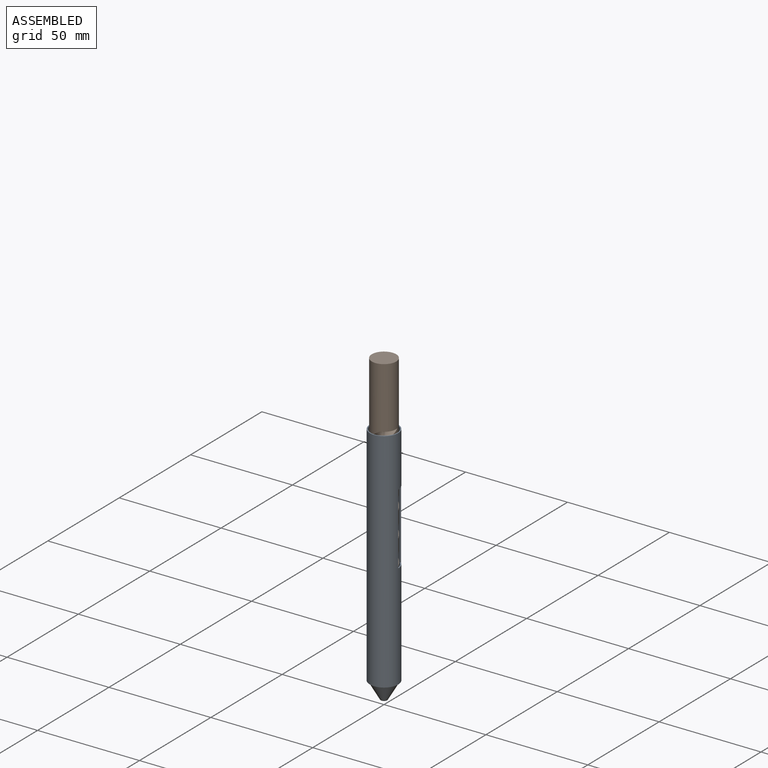
[diagram: assembled view]
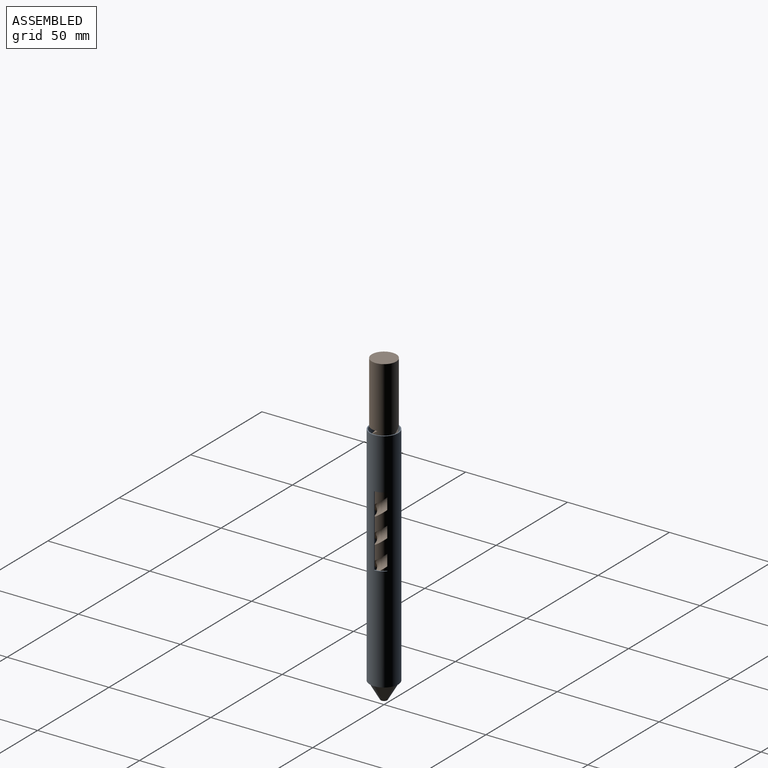
[diagram: assembled view, second angle]
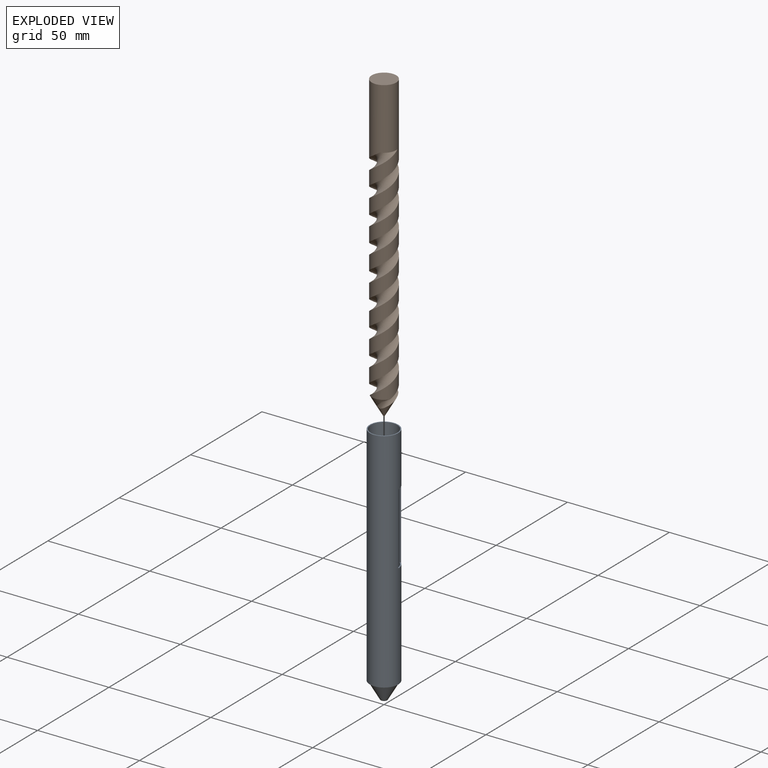
[diagram: exploded view]
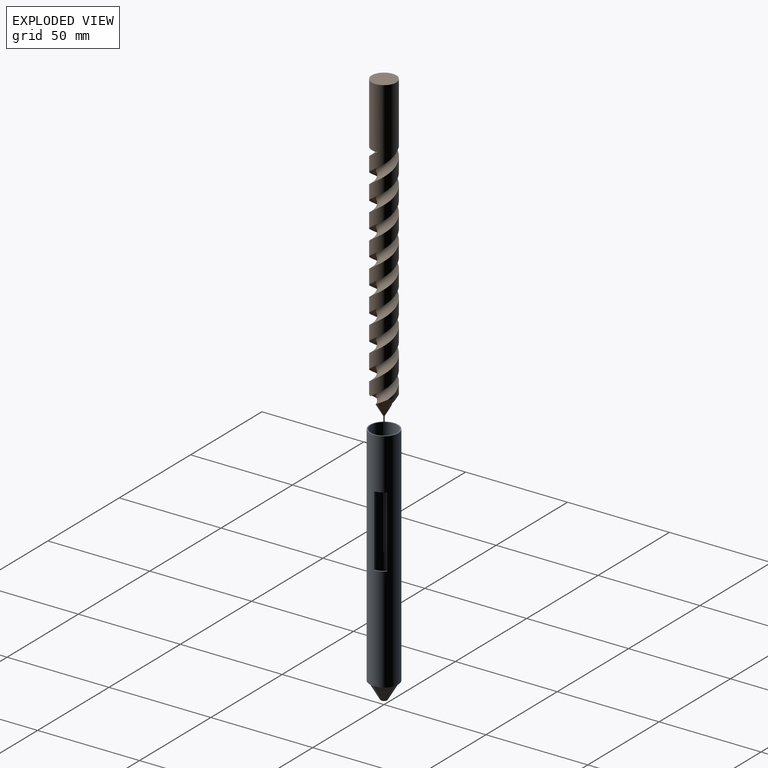
[diagram: exploded view, second angle]
FCSTD DOCUMENT  (FreeCAD 1.0R39109 (Git))
Label: assembly
License: All rights reserved
LicenseURL: https://en.wikipedia.org/wiki/All_rights_reserved
objects: App::DocumentObjectGroup×2, App::Link×2, App::FeaturePython×1, Assembly::JointGroup×1, Assembly::AssemblyObject×1
EXTERNAL_REF file=rurka.FCStd obj=Body
EXTERNAL_REF file=sruba.FCStd obj=Body002

FEATURE [App::DocumentObjectGroup] Group  label="Grupa"
FEATURE [App::DocumentObjectGroup] Group001  label="Grupa001"
FEATURE [App::Link] Zawarto____  label="Zawartość"
  LinkedObject = -> <external rurka.FCStd>#Body
FEATURE [App::FeaturePython] GroundedJoint  # Assembly grounded joint (typed FeaturePython)
  ObjectToGround = -> Zawarto____
FEATURE [Assembly::JointGroup] Joints
  Group = -> [GroundedJoint]
FEATURE [App::Link] Zawarto____002  label="Zawartość002"
  LinkPlacement = pos=(0,0,1.49) rot=(0,0,1;0rad)
  LinkedObject = -> <external sruba.FCStd>#Body002
  Placement = pos=(0,0,1.49) rot=(0,0,1;0rad)
FEATURE [Assembly::AssemblyObject] Assembly
  Group = -> [Joints,Zawarto____,GroundedJoint,Zawarto____002]
  Origin = -> Origin
  Type = Assembly

RESOLVED EXTERNAL PARTS (link-assembly join: the EXTERNAL_REF files above that resolve inside this repo's crawl, each included once):
---- part rurka.FCStd = doc fcstd_3a7cbbab8489 ----
FCSTD DOCUMENT  (FreeCAD 1.0R39109 (Git))
Label: rurka
License: All rights reserved
LicenseURL: https://en.wikipedia.org/wiki/All_rights_reserved
objects: Sketcher::SketchObject×4, PartDesign::Pocket×2, PartDesign::Pad×1, PartDesign::Revolution×1, PartDesign::Body×1
note: 21 computed .brp shape members not serialized (recipe doc carries the construction recipe); baked Part::Feature solids carry a one-line shape summary decoded from their .brp

FEATURE [Sketcher::SketchObject] Sketch
  ArcFitTolerance = 1e-06
  AttachmentSupport = -> [XY_Plane]
  FullyConstrained = true
  MakeInternals = false
  MapMode = 5
  sketch-geometry (2):
    g0: Circle CenterX=0 CenterY=0 CenterZ=0 NormalX=0 NormalY=0 NormalZ=1 AngleXU=0 Radius=6.5
    g1: Circle CenterX=0 CenterY=0 CenterZ=0 NormalX=0 NormalY=0 NormalZ=1 AngleXU=0 Radius=7
  constraints (4):
    c: Coincident(g0,g-1)
    c: Coincident(g1,g0)
    c: Radius(g0) = 6.5
    c: Radius(g1) = 7
FEATURE [PartDesign::Pad] Pad
  Direction = (0,0,1)
  Length = 120
  Length2 = 10
  Profile = -> Sketch
  ReferenceAxis = -> Sketch [N_Axis]
  Refine = true
  Suppressed = false
  Type = 0
FEATURE [Sketcher::SketchObject] Sketch001
  ArcFitTolerance = 1e-06
  AttachmentSupport = -> [XZ_Plane]
  FullyConstrained = true
  MakeInternals = false
  MapMode = 5
  Placement = pos=(0,0,0) rot=(1,0,0;1.5708rad)
  sketch-geometry (4):
    g0: LineSegment StartX=0.917134 StartY=0 StartZ=0 EndX=7 EndY=10.5358 EndZ=0
    g1: LineSegment StartX=7 StartY=10.5358 StartZ=0 EndX=7 EndY=9.41 EndZ=0
    g2: LineSegment StartX=7 StartY=9.41 StartZ=0 EndX=1.56713 EndY=0 EndZ=0
    g3: LineSegment StartX=1.56713 StartY=0 StartZ=0 EndX=0.917134 EndY=0 EndZ=0
  constraints (12):
    c: PointOnObject(g0,g-1)
    c: Coincident(g0,g1)
    c: Vertical(g1)
    c: Coincident(g1,g2)
    c: PointOnObject(g2,g-1)
    c: Coincident(g2,g3)
    c: Coincident(g3,g0)
    c: Parallel(g0,g2)
    c: DistanceX(g3,g3) = 0.65
    c: Angle(g3,g0) = 1.0472
    c: DistanceX(g-1,g1) = 7
    c: DistanceY(g-1,g1) = 9.41
FEATURE [PartDesign::Revolution] Revolution
  Angle = 360
  Angle2 = 60
  Axis = (0,2e-16,1)
  Base = (0,0,0)
  BaseFeature = -> Pad
  Profile = -> Sketch001
  ReferenceAxis = -> Sketch001 [V_Axis]
  Refine = true
  Reversed = true
  Suppressed = false
  Type = 0
FEATURE [Sketcher::SketchObject] Sketch002
  ArcFitTolerance = 1e-06
  AttachmentSupport = -> [XY_Plane]
  FullyConstrained = true
  MakeInternals = false
  MapMode = 5
FEATURE [PartDesign::Pocket] Pocket
  BaseFeature = -> Revolution
  Direction = (0,0,1)
  Length = 8.5
  Length2 = 5
  Profile = -> Revolution [Face7]
  Refine = true
  Suppressed = false
  Type = 0
FEATURE [Sketcher::SketchObject] Sketch003
  ArcFitTolerance = 1e-06
  AttachmentSupport = -> [XZ_Plane]
  FullyConstrained = true
  MakeInternals = false
  MapMode = 5
  Placement = pos=(0,0,0) rot=(1,0,0;1.5708rad)
  sketch-geometry (4):
    g0: LineSegment StartX=2.41 StartY=95 StartZ=0 EndX=2.41 EndY=60 EndZ=0
    g1: LineSegment StartX=2.41 StartY=60 StartZ=0 EndX=7.41 EndY=60 EndZ=0
    g2: LineSegment StartX=7.41 StartY=60 StartZ=0 EndX=7.41 EndY=95 EndZ=0
    g3: LineSegment StartX=7.41 StartY=95 StartZ=0 EndX=2.41 EndY=95 EndZ=0
  constraints (12):
    c: Coincident(g0,g1)
    c: Coincident(g1,g2)
    c: Coincident(g2,g3)
    c: Coincident(g3,g0)
    c: Vertical(g0)
    c: Vertical(g2)
    c: Horizontal(g1)
    c: Horizontal(g3)
    c: DistanceX(g3,g3) = 5
    c: DistanceY(g2,g2) = 35
    c: DistanceX(g-1,g0) = 2.41
    c: DistanceY(g-1,g0) = 60
FEATURE [PartDesign::Pocket] Pocket001
  BaseFeature = -> Pocket
  Direction = (0,1,-2e-16)
  Length = 5
  Length2 = 5
  Profile = -> Sketch003
  ReferenceAxis = -> Sketch003 [N_Axis]
  Refine = true
  Suppressed = false
  Type = 0
FEATURE [PartDesign::Body] Body  label="Zawartość"
  AllowCompound = false
  Group = -> [Sketch,Pad,Sketch001,Revolution,Sketch002,Pocket,Sketch003,Pocket001]
  Origin = -> Origin
  Tip = -> Pocket001
---- part sruba.FCStd = doc fcstd_b9ff9e365948 ----
FCSTD DOCUMENT  (FreeCAD 1.0R39109 (Git))
Label: sruba
License: All rights reserved
LicenseURL: https://en.wikipedia.org/wiki/All_rights_reserved
objects: PartDesign::Body×4, Sketcher::SketchObject×2, PartDesign::AdditiveCylinder×1, PartDesign::SubtractiveHelix×1, PartDesign::PolarPattern×1, PartDesign::Revolution×1, PartDesign::Boolean×1
note: 21 computed .brp shape members not serialized (recipe doc carries the construction recipe); baked Part::Feature solids carry a one-line shape summary decoded from their .brp

FEATURE [PartDesign::Body] Body  label="Zawartość"
  AllowCompound = false
  Origin = -> Origin
FEATURE [PartDesign::Body] Body001  label="Zawartość001"
  AllowCompound = false
  Origin = -> Origin001
FEATURE [PartDesign::AdditiveCylinder] Cylinder
  Angle = 360
  AttacherType = Attacher::AttachEngine3D
  FirstAngle = 0
  Height = 150
  Radius = 6
  Refine = true
  SecondAngle = 0
  Suppressed = false
FEATURE [Sketcher::SketchObject] Sketch
  ArcFitTolerance = 1e-06
  AttachmentSupport = -> [Cylinder]
  ExternalGeometry = -> [Cylinder]
  FullyConstrained = true
  MakeInternals = false
  MapMode = 5
  Placement = pos=(0,0,0) rot=(1,0,0;3.14159rad)
  sketch-geometry (3):
    g0: LineSegment StartX=-1 StartY=5.91608 StartZ=0 EndX=-3.07345 EndY=-0.463638 EndZ=0
    g1: ArcOfCircle CenterX=-4.5 CenterY=0 CenterZ=0 NormalX=0 NormalY=0 NormalZ=1 AngleXU=0 Radius=1.5 StartAngle=3.1416 EndAngle=5.96895
    g2: ArcOfCircle CenterX=0 CenterY=0 CenterZ=0 NormalX=0 NormalY=0 NormalZ=1 AngleXU=0 Radius=6 StartAngle=1.73824 EndAngle=3.1416
  constraints (9):
    c: PointOnObject(g0,g-3)
    c: PointOnObject(g1,g-1)
    c: Coincident(g2,g-1)
    c: Coincident(g2,g1)
    c: Coincident(g2,g0)
    c: Tangent(g1,g0) = 1.5708
    c: DistanceX(g0,g2) = 1
    c: DistanceX(g1,g2) = 4.5
    c: Radius(g1) = 1.5
FEATURE [PartDesign::SubtractiveHelix] SubtractiveHelix
  Angle = 0
  Axis = (1e-16,1e-16,1)
  Base = (0,0,0)
  BaseFeature = -> Cylinder
  Growth = 0
  HasBeenEdited = true
  Height = 120
  LeftHanded = false
  Mode = 0
  Outside = false
  Pitch = 25
  Profile = -> Sketch
  ReferenceAxis = -> Z_Axis002
  Refine = true
  Suppressed = false
  Tolerance = 0.1
  Turns = 4.8
FEATURE [PartDesign::PolarPattern] PolarPattern
  Angle = 360
  Axis = -> Sketch [N_Axis]
  BaseFeature = -> SubtractiveHelix
  Mode = 0
  Occurrences = 2
  Offset = 120
  Originals = -> [SubtractiveHelix]
  Refine = true
  Suppressed = false
  TransformMode = 0
FEATURE [Sketcher::SketchObject] Sketch001
  ArcFitTolerance = 1e-06
  AttachmentSupport = -> [XZ_Plane003]
  FullyConstrained = true
  MakeInternals = false
  MapMode = 5
  Placement = pos=(0,0,0) rot=(1,0,0;1.5708rad)
  sketch-geometry (3):
    g0: LineSegment StartX=9e-16 StartY=0 StartZ=0 EndX=7 EndY=0 EndZ=0
    g1: LineSegment StartX=7 StartY=0 StartZ=0 EndX=7 EndY=12.1244 EndZ=0
    g2: LineSegment StartX=7 StartY=12.1244 StartZ=0 EndX=9e-16 EndY=0 EndZ=0
  constraints (8):
    c: Coincident(g-1,g0)
    c: PointOnObject(g0,g-1)
    c: Coincident(g0,g1)
    c: Vertical(g1)
    c: Coincident(g1,g2)
    c: Coincident(g2,g0)
    c: Angle(g0,g2) = 1.0472
    c: DistanceX(g0,g0) = 7
FEATURE [PartDesign::Revolution] Revolution
  Angle = 360
  Angle2 = 60
  Axis = (0,2e-16,1)
  Base = (0,0,0)
  Placement = pos=(0,0,0) rot=(1,0,0;1.5708rad)
  Profile = -> Sketch001
  ReferenceAxis = -> Sketch001 [V_Axis]
  Refine = true
  Reversed = true
  Suppressed = false
  Type = 0
FEATURE [PartDesign::Body] Body003  label="Zawartość003"
  AllowCompound = false
  Group = -> [Sketch001,Revolution]
  Origin = -> Origin003
  Tip = -> Revolution
FEATURE [PartDesign::Boolean] Boolean
  BaseFeature = -> PolarPattern
  Group = -> [Body003]
  Refine = true
  Suppressed = false
  Type = 1
  UsePlacement = true
FEATURE [PartDesign::Body] Body002  label="Zawartość002"
  AllowCompound = false
  Group = -> [Cylinder,Sketch,SubtractiveHelix,PolarPattern,Boolean]
  Origin = -> Origin002
  Tip = -> Boolean
